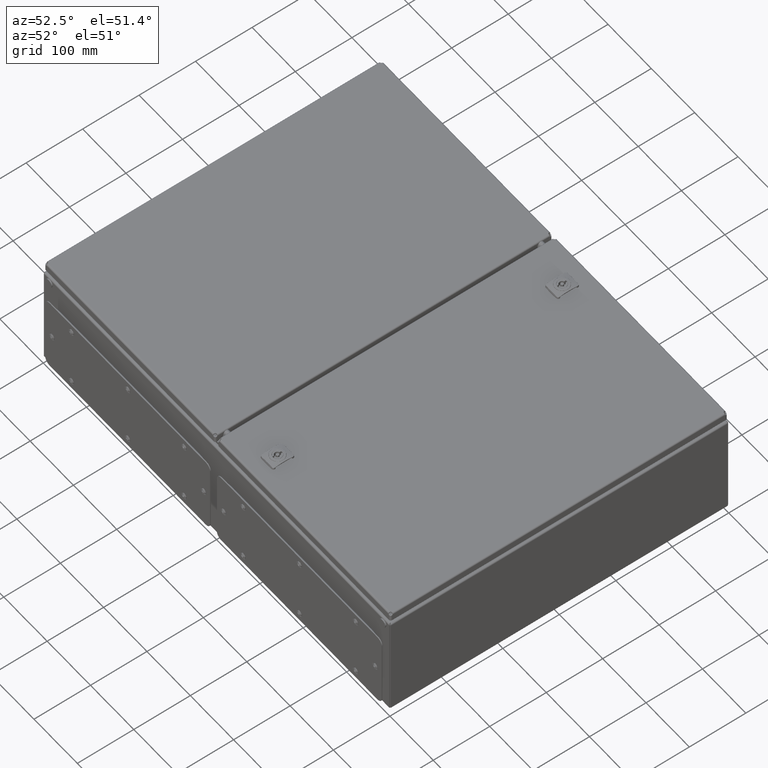
[diagram: clean part render]
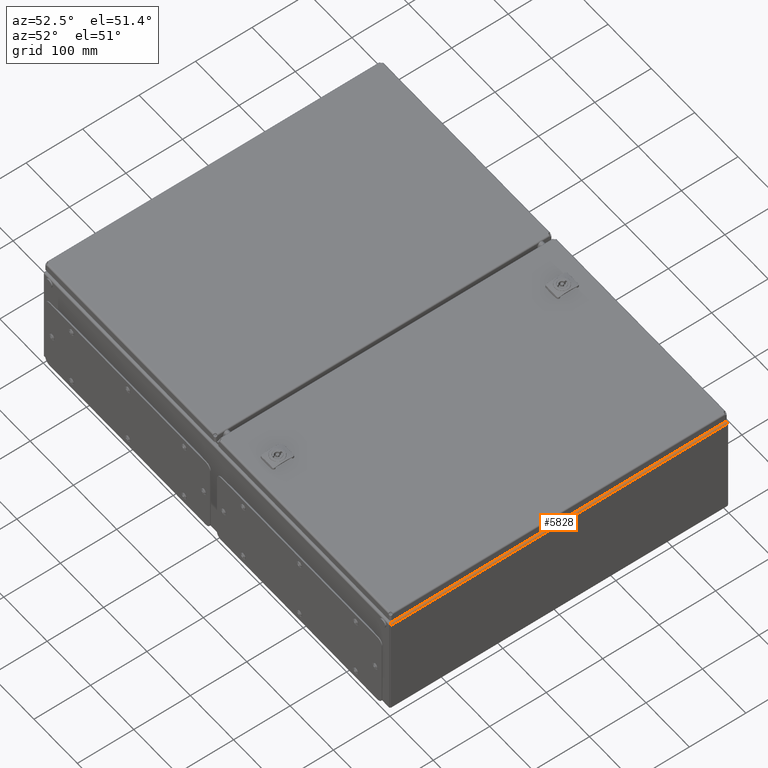
[diagram: same view with one face highlighted and labeled with its STEP entity id]
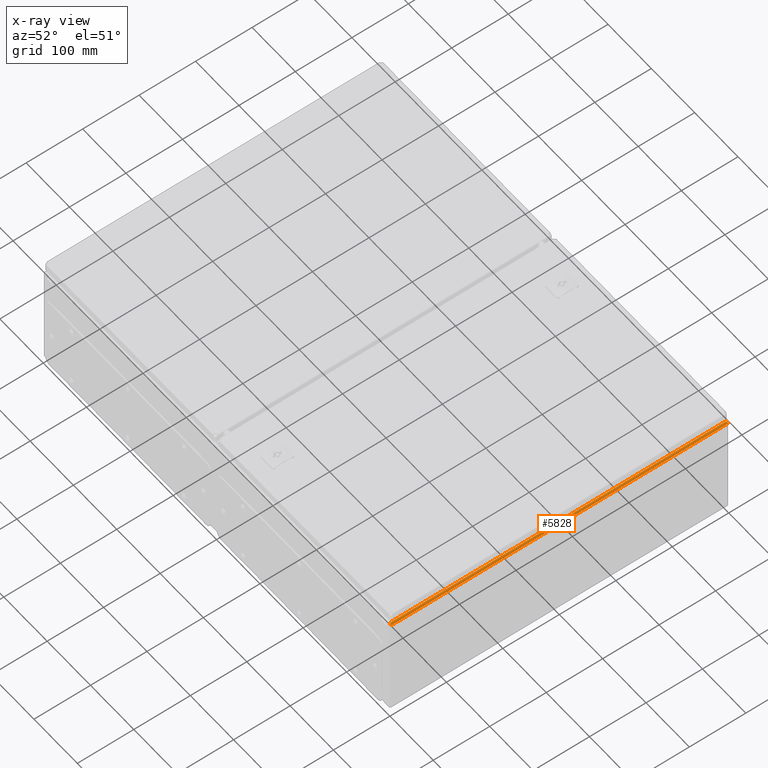
[diagram: x-ray of the same camera — body ghosted, the highlighted face saturated]
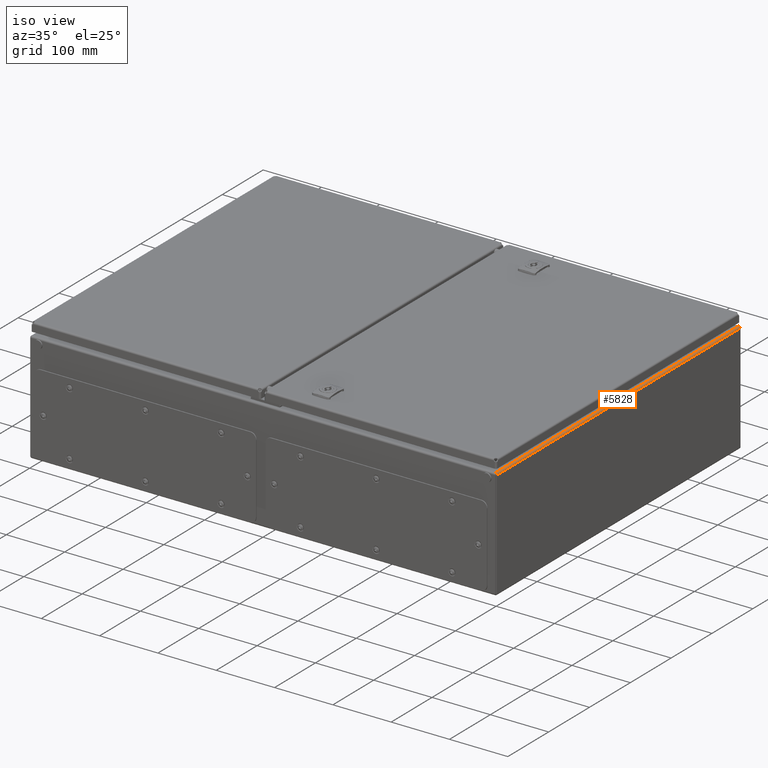
[diagram: same view with one face highlighted and labeled with its STEP entity id]
A machine part, auxiliary view. The second image highlights one B-rep face of the part: STEP entity #5828.
The next image is the same camera in x-ray: the body ghosted, the highlighted face saturated — about 0% of this face is hidden behind the body in this view.
A second angle (iso view) of the same face is appended — the face is thin or edge-on in the first view.
In plain terms, the highlighted cylindrical surface (edge-blend (fillet) strip) has radius 3 mm, axis along (0, 1, 0).
Its self-contained STEP definition (entity closure, byte-faithful):
#59 = CARTESIAN_POINT ( 'NONE',  ( 399.0240306471921500, 298.0456253601965400, 189.2184050177464200 ) ) ;
#63 = CARTESIAN_POINT ( 'NONE',  ( 398.7477294675516100, 297.9333784796519900, 189.4387205864686100 ) ) ;
#308 = CARTESIAN_POINT ( 'NONE',  ( 398.5658822159011300, 297.8567630008676600, 189.5603980466435100 ) ) ;
#372 = CARTESIAN_POINT ( 'NONE',  ( 398.8870178177243100, 297.9904555056325000, 189.3322272792807700 ) ) ;
#398 = CARTESIAN_POINT ( 'NONE',  ( 399.7087621639602700, 298.2853639006397700, 188.3078828780761600 ) ) ;
#450 = CARTESIAN_POINT ( 'NONE',  ( 399.9539209551948000, 298.4000577601337300, 187.5853635275956900 ) ) ;
#487 = CARTESIAN_POINT ( 'NONE',  ( 398.8997713122452600, 297.9956112419387200, 189.3218309677555500 ) ) ;
#3097 = ORIENTED_EDGE ( 'NONE', *, *, #15783, .F. ) ;
#3325 = CARTESIAN_POINT ( 'NONE',  ( 397.0000000001364800, -298.4992928932301200, 189.9999999998638900 ) ) ;
#3570 = DIRECTION ( 'NONE',  ( 0.0000000000000000000, 1.000000000000000000, 0.0000000000000000000 ) ) ;
#4007 = CYLINDRICAL_SURFACE ( 'NONE', #19741, 3.000000000000002700 ) ;
#4077 = FACE_OUTER_BOUND ( 'NONE', #21340, .T. ) ;
#5828 = ADVANCED_FACE ( 'NONE', ( #4077 ), #4007, .T. ) ;
#10444 = CARTESIAN_POINT ( 'NONE',  ( 397.0000000000003400, -596.9582465088723200, 187.0000000000000000 ) ) ;
#10716 = DIRECTION ( 'NONE',  ( 0.0000000000000000000, 1.000000000000000000, 0.0000000000000000000 ) ) ;
#10717 = DIRECTION ( 'NONE',  ( 0.0000000000000000000, 0.0000000000000000000, 1.000000000000000000 ) ) ;
#14516 = LINE ( 'NONE', #47487, #15000 ) ;
#15000 = VECTOR ( 'NONE', #47459, 1000.000000000000000 ) ;
#15666 = EDGE_CURVE ( 'NONE', #18512, #18576, #25870, .T. ) ;
#15783 = EDGE_CURVE ( 'NONE', #19114, #18512, #38740, .T. ) ;
#15968 = EDGE_CURVE ( 'NONE', #18385, #19114, #25925, .T. ) ;
#16075 = EDGE_CURVE ( 'NONE', #18976, #18385, #25900, .T. ) ;
#18385 = VERTEX_POINT ( 'NONE', #46590 ) ;
#18512 = VERTEX_POINT ( 'NONE', #46391 ) ;
#18576 = VERTEX_POINT ( 'NONE', #46437 ) ;
#18976 = VERTEX_POINT ( 'NONE', #50439 ) ;
#19114 = VERTEX_POINT ( 'NONE', #51259 ) ;
#19741 = AXIS2_PLACEMENT_3D ( 'NONE', #10444, #10716, #10717 ) ;
#21340 = EDGE_LOOP ( 'NONE', ( #22835, #3097, #23360, #22729, #22961 ) ) ;
#22729 = ORIENTED_EDGE ( 'NONE', *, *, #16075, .F. ) ;
#22835 = ORIENTED_EDGE ( 'NONE', *, *, #15666, .F. ) ;
#22961 = ORIENTED_EDGE ( 'NONE', *, *, #56323, .T. ) ;
#23360 = ORIENTED_EDGE ( 'NONE', *, *, #15968, .F. ) ;
#25870 = B_SPLINE_CURVE_WITH_KNOTS ( 'NONE', 3,
 ( #60060, #59737, #59470, #60131, #59579, #308, #59308, #63, #59487, #59362, #59486, #59277, #372, #487, #59851, #59802, #59893, #59, #59743, #59973, #59617, #398, #59411, #450, #59638, #59494 ),
 .UNSPECIFIED., .F., .F.,
 ( 4, 2, 2, 2, 2, 2, 2, 2, 2, 2, 2, 2, 4 ),
 ( 0.0000000000000000000, 0.2500000000000000000, 0.3750000000000000000, 0.4375000000000000000, 0.4687500000000000000, 0.4843750000000000000, 0.4921875000000000000, 0.4960937500000000000, 0.5000000000000000000, 0.6250000000000000000, 0.7500000000000000000, 0.8750000000000000000, 1.000000000000000000 ),
 .UNSPECIFIED. ) ;
#25900 = B_SPLINE_CURVE_WITH_KNOTS ( 'NONE', 3,
 ( #54406, #54401, #54392, #54766, #54413, #54415, #54416, #55242, #55243, #55233, #54382, #55241, #54395, #54394 ),
 .UNSPECIFIED., .F., .F.,
 ( 4, 2, 2, 2, 2, 2, 4 ),
 ( 0.0000000000000000000, 0.2499998974464598100, 0.3749998461696897300, 0.4374998205313046500, 0.4999997948929196200, 0.7499996923393794600, 0.9999995897858392500 ),
 .UNSPECIFIED. ) ;
#25925 = B_SPLINE_CURVE_WITH_KNOTS ( 'NONE', 3,
 ( #54800, #54760, #54759, #54367 ),
 .UNSPECIFIED., .F., .F.,
 ( 4, 4 ),
 ( 0.0000000000000000000, 1.000000000000000000 ),
 .UNSPECIFIED. ) ;
#38740 = LINE ( 'NONE', #3325, #38797 ) ;
#38797 = VECTOR ( 'NONE', #3570, 1000.000000000000000 ) ;
#46391 = CARTESIAN_POINT ( 'NONE',  ( 397.0000000001364800, 297.0717820690735500, 189.9999999998619600 ) ) ;
#46437 = CARTESIAN_POINT ( 'NONE',  ( 399.9999999999983500, 298.4744118324627500, 187.0000000000000000 ) ) ;
#46590 = CARTESIAN_POINT ( 'NONE',  ( 397.7737098597362400, -297.4992936978025600, 189.8985122136964500 ) ) ;
#47459 = DIRECTION ( 'NONE',  ( 0.0000000000000000000, 1.000000000000000000, 0.0000000000000000000 ) ) ;
#47487 = CARTESIAN_POINT ( 'NONE',  ( 400.0000000000003400, -3283.492221825461000, 187.0000000000000000 ) ) ;
#50439 = CARTESIAN_POINT ( 'NONE',  ( 400.0000000000027900, -298.4744118324675800, 187.0000000000000000 ) ) ;
#51259 = CARTESIAN_POINT ( 'NONE',  ( 397.0000000001364800, -297.0011046352445900, 189.9999999998663300 ) ) ;
#54367 = CARTESIAN_POINT ( 'NONE',  ( 397.0000000001364800, -297.0011046352445900, 189.9999999998663300 ) ) ;
#54382 = CARTESIAN_POINT ( 'NONE',  ( 398.9889191617923000, -298.0127387015066900, 189.2662311123253600 ) ) ;
#54392 = CARTESIAN_POINT ( 'NONE',  ( 399.8731610461570700, -298.3625432952472900, 187.9322393037666100 ) ) ;
#54394 = CARTESIAN_POINT ( 'NONE',  ( 397.7737098597362400, -297.4992936978025600, 189.8985122136964500 ) ) ;
#54395 = CARTESIAN_POINT ( 'NONE',  ( 398.1759231469329200, -297.6627434622771500, 189.7911483283728000 ) ) ;
#54401 = CARTESIAN_POINT ( 'NONE',  ( 400.0000000000003400, -298.4178713758574300, 187.5115010479916900 ) ) ;
#54406 = CARTESIAN_POINT ( 'NONE',  ( 400.0000000000027900, -298.4744118324675800, 187.0000000000000000 ) ) ;
#54413 = CARTESIAN_POINT ( 'NONE',  ( 399.5733471137287400, -298.2528084117616900, 188.5481118775887800 ) ) ;
#54415 = CARTESIAN_POINT ( 'NONE',  ( 399.4594995381623300, -298.2120886643817800, 188.7191723183256600 ) ) ;
#54416 = CARTESIAN_POINT ( 'NONE',  ( 399.4223253140890500, -298.1985564470576800, 188.7708150650705900 ) ) ;
#54759 = CARTESIAN_POINT ( 'NONE',  ( 397.2608752832277900, -297.1671829986134400, 190.0000000000000000 ) ) ;
#54760 = CARTESIAN_POINT ( 'NONE',  ( 397.5216577689495800, -297.3332145298368800, 189.9657931629656400 ) ) ;
#54766 = CARTESIAN_POINT ( 'NONE',  ( 399.6525453477842700, -298.2801190372253500, 188.4124568337155700 ) ) ;
#54800 = CARTESIAN_POINT ( 'NONE',  ( 397.7737098597362400, -297.4992936978025600, 189.8985122136964500 ) ) ;
#55233 = CARTESIAN_POINT ( 'NONE',  ( 399.1624016387280600, -298.0925875070850600, 189.0881020951672700 ) ) ;
#55241 = CARTESIAN_POINT ( 'NONE',  ( 398.4961829155738000, -297.7975980657819800, 189.6178310812121900 ) ) ;
#55242 = CARTESIAN_POINT ( 'NONE',  ( 399.3511973980140500, -298.1715740760147400, 188.8642201365529700 ) ) ;
#55243 = CARTESIAN_POINT ( 'NONE',  ( 399.3163511174383900, -298.1577466237031300, 188.9070335474715100 ) ) ;
#56323 = EDGE_CURVE ( 'NONE', #18976, #18576, #14516, .T. ) ;
#59277 = CARTESIAN_POINT ( 'NONE',  ( 398.8784788693255300, 297.9869954634206100, 189.3391103832787200 ) ) ;
#59308 = CARTESIAN_POINT ( 'NONE',  ( 398.6398770957019900, 297.8882879638829900, 189.5136564350452500 ) ) ;
#59362 = CARTESIAN_POINT ( 'NONE',  ( 398.8354595119662900, 297.9694892902900800, 189.3730926528842000 ) ) ;
#59411 = CARTESIAN_POINT ( 'NONE',  ( 399.8082065614112300, 298.3239785508953900, 188.0873248720712400 ) ) ;
#59470 = CARTESIAN_POINT ( 'NONE',  ( 397.6893937433106300, 297.4528682600960100, 189.9403156953093500 ) ) ;
#59486 = CARTESIAN_POINT ( 'NONE',  ( 398.8527538201365100, 297.9765466827610700, 189.3596152806389600 ) ) ;
#59487 = CARTESIAN_POINT ( 'NONE',  ( 398.7831571030288300, 297.9480424967826500, 189.4129384954605700 ) ) ;
#59494 = CARTESIAN_POINT ( 'NONE',  ( 399.9999999999983500, 298.4744118324627500, 187.0000000000000000 ) ) ;
#59579 = CARTESIAN_POINT ( 'NONE',  ( 398.3385136366897000, 297.7577942543138600, 189.6905171119539100 ) ) ;
#59617 = CARTESIAN_POINT ( 'NONE',  ( 399.4901343822112900, 298.2069845088557300, 188.6873591325489200 ) ) ;
#59638 = CARTESIAN_POINT ( 'NONE',  ( 400.0000000000003400, 298.4374843736904400, 187.3040206679667100 ) ) ;
#59737 = CARTESIAN_POINT ( 'NONE',  ( 397.3437591922839300, 297.2740406773375000, 190.0000000000000000 ) ) ;
#59743 = CARTESIAN_POINT ( 'NONE',  ( 399.1379610775683200, 298.0865401929978600, 189.1119453084748700 ) ) ;
#59802 = CARTESIAN_POINT ( 'NONE',  ( 398.9124788966267400, 298.0007383724017700, 189.3113750369615800 ) ) ;
#59851 = CARTESIAN_POINT ( 'NONE',  ( 398.9040133224608600, 297.9973240995387900, 189.3183535880929200 ) ) ;
#59893 = CARTESIAN_POINT ( 'NONE',  ( 398.9176944232958700, 298.0028389230576500, 189.3070469647105700 ) ) ;
#59973 = CARTESIAN_POINT ( 'NONE',  ( 399.3709930687549600, 298.1672197673274200, 188.8465054625162300 ) ) ;
#60060 = CARTESIAN_POINT ( 'NONE',  ( 397.0000000001364800, 297.0717820690735500, 189.9999999998619600 ) ) ;
#60131 = CARTESIAN_POINT ( 'NONE',  ( 398.1797492411338900, 297.6859566132673100, 189.7637604379530100 ) ) ;